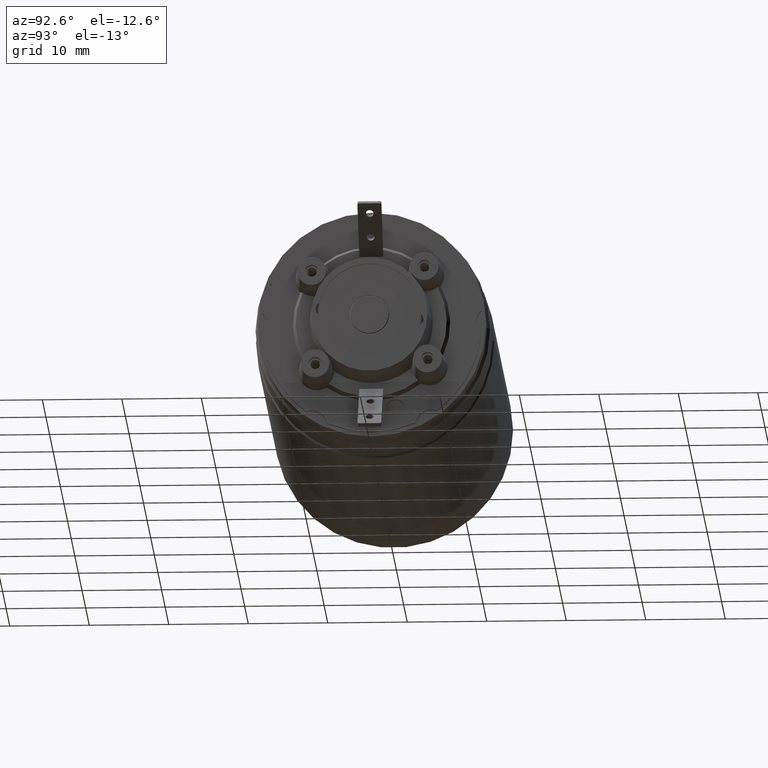
[diagram: clean part render]
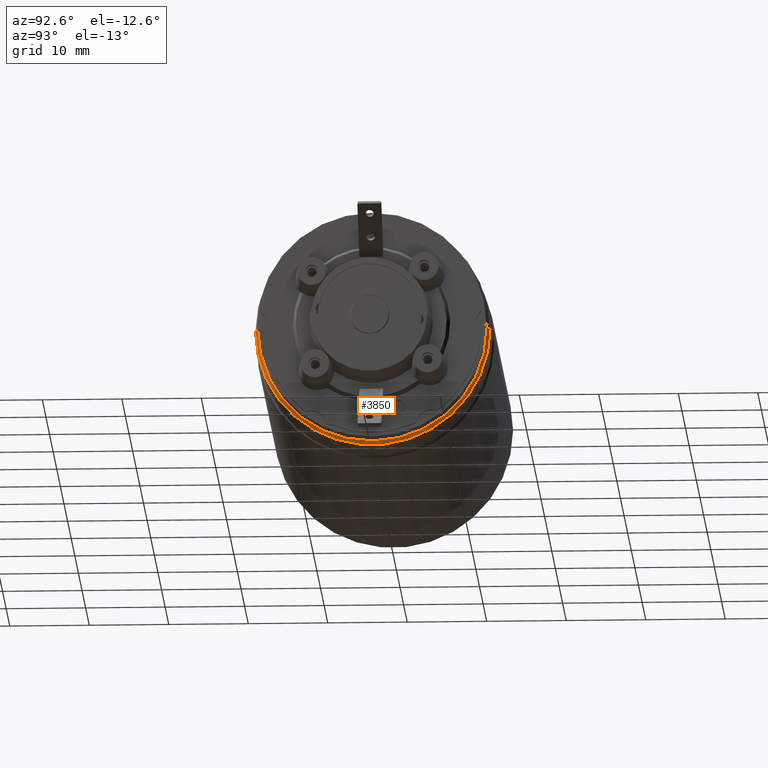
[diagram: same view with one face highlighted and labeled with its STEP entity id]
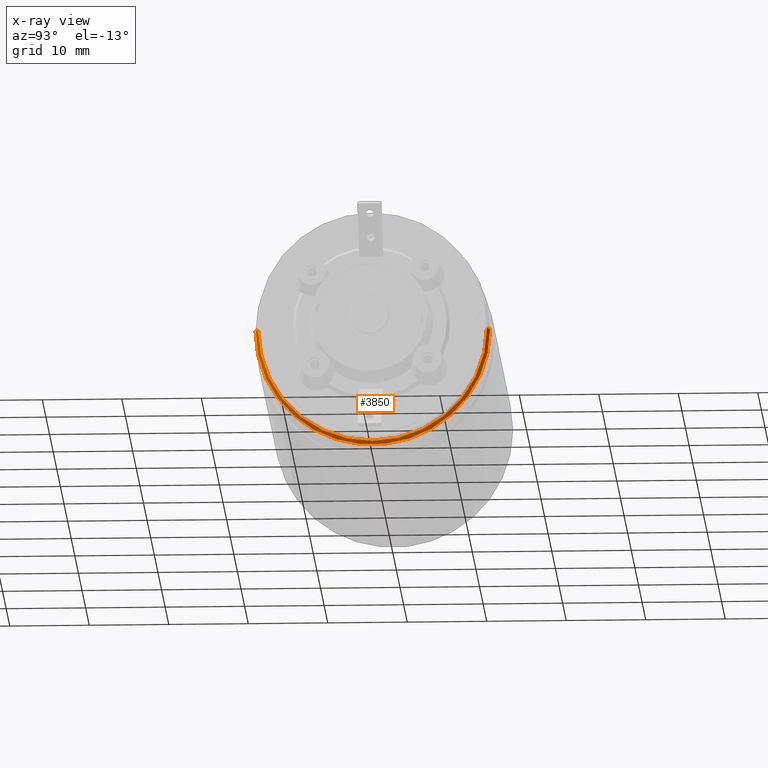
[diagram: x-ray of the same camera — body ghosted, the highlighted face saturated]
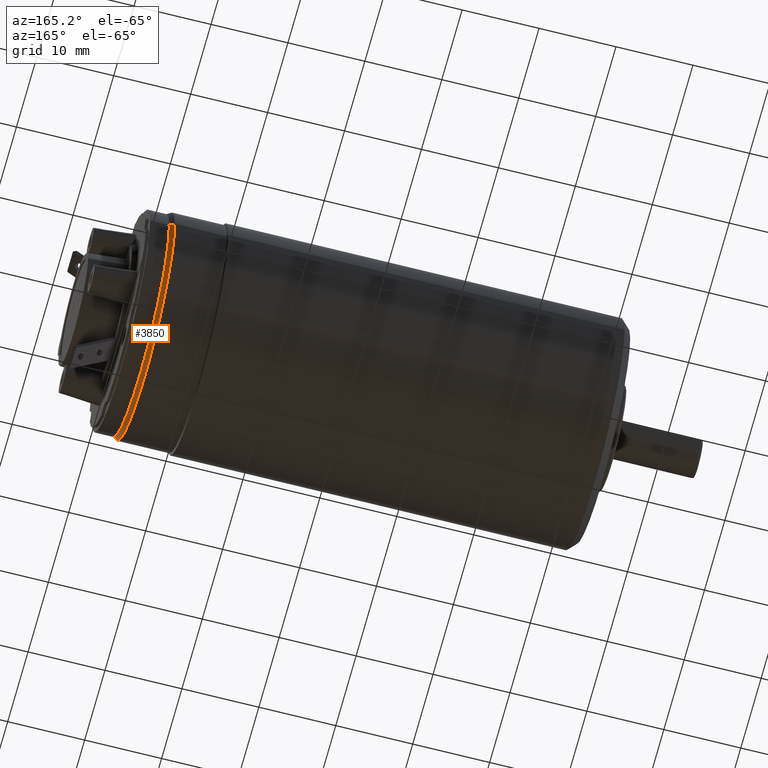
[diagram: same view with one face highlighted and labeled with its STEP entity id]
A machine part, auxiliary view. The second image highlights one B-rep face of the part: STEP entity #3850.
The next image is the same camera in x-ray: the body ghosted, the highlighted face saturated — about 0% of this face is hidden behind the body in this view.
A second angle (auxiliary view) of the same face is appended — the face is thin or edge-on in the first view.
In plain terms, the highlighted conical surface has half-angle 30 deg.
Its self-contained STEP definition (entity closure, byte-faithful):
#1057=CARTESIAN_POINT('',(6.E0,0.E0,0.E0));
#1058=DIRECTION('',(-1.E0,0.E0,0.E0));
#1059=DIRECTION('',(0.E0,1.E0,0.E0));
#1060=AXIS2_PLACEMENT_3D('',#1057,#1058,#1059);
#1062=DIRECTION('',(-8.660254037844E-1,5.E-1,0.E0));
#1063=VECTOR('',#1062,7.E-1);
#1064=CARTESIAN_POINT('',(6.E0,1.44E1,0.E0));
#1065=LINE('',#1064,#1063);
#1071=DIRECTION('',(-8.660254037844E-1,-5.E-1,0.E0));
#1072=VECTOR('',#1071,7.E-1);
#1073=CARTESIAN_POINT('',(6.E0,-1.44E1,0.E0));
#1074=LINE('',#1073,#1072);
#1088=CARTESIAN_POINT('',(5.393782217351E0,0.E0,0.E0));
#1089=DIRECTION('',(-1.E0,0.E0,0.E0));
#1090=DIRECTION('',(0.E0,1.E0,0.E0));
#1091=AXIS2_PLACEMENT_3D('',#1088,#1089,#1090);
#2311=CARTESIAN_POINT('',(6.E0,1.44E1,0.E0));
#2313=VERTEX_POINT('',#2311);
#2314=CARTESIAN_POINT('',(5.393782217351E0,1.475E1,0.E0));
#2315=VERTEX_POINT('',#2314);
#2325=CARTESIAN_POINT('',(6.E0,-1.44E1,0.E0));
#2327=VERTEX_POINT('',#2325);
#2328=CARTESIAN_POINT('',(5.393782217351E0,-1.475E1,0.E0));
#2329=VERTEX_POINT('',#2328);
#3836=CARTESIAN_POINT('',(5.696891108675E0,0.E0,0.E0));
#3837=DIRECTION('',(-1.E0,0.E0,0.E0));
#3838=DIRECTION('',(0.E0,1.E0,0.E0));
#3839=AXIS2_PLACEMENT_3D('',#3836,#3837,#3838);
#3840=CONICAL_SURFACE('',#3839,1.4575E1,3.E1);
#3842=ORIENTED_EDGE('',*,*,#3841,.T.);
#3844=ORIENTED_EDGE('',*,*,#3843,.T.);
#3846=ORIENTED_EDGE('',*,*,#3845,.F.);
#3847=ORIENTED_EDGE('',*,*,#3829,.F.);
#3848=EDGE_LOOP('',(#3842,#3844,#3846,#3847));
#3849=FACE_OUTER_BOUND('',#3848,.F.);
#3850=ADVANCED_FACE('',(#3849),#3840,.T.);
#1061=CIRCLE('',#1060,1.44E1);
#1092=CIRCLE('',#1091,1.475E1);
#3829=EDGE_CURVE('',#2313,#2327,#1061,.T.);
#3841=EDGE_CURVE('',#2313,#2315,#1065,.T.);
#3843=EDGE_CURVE('',#2315,#2329,#1092,.T.);
#3845=EDGE_CURVE('',#2327,#2329,#1074,.T.);